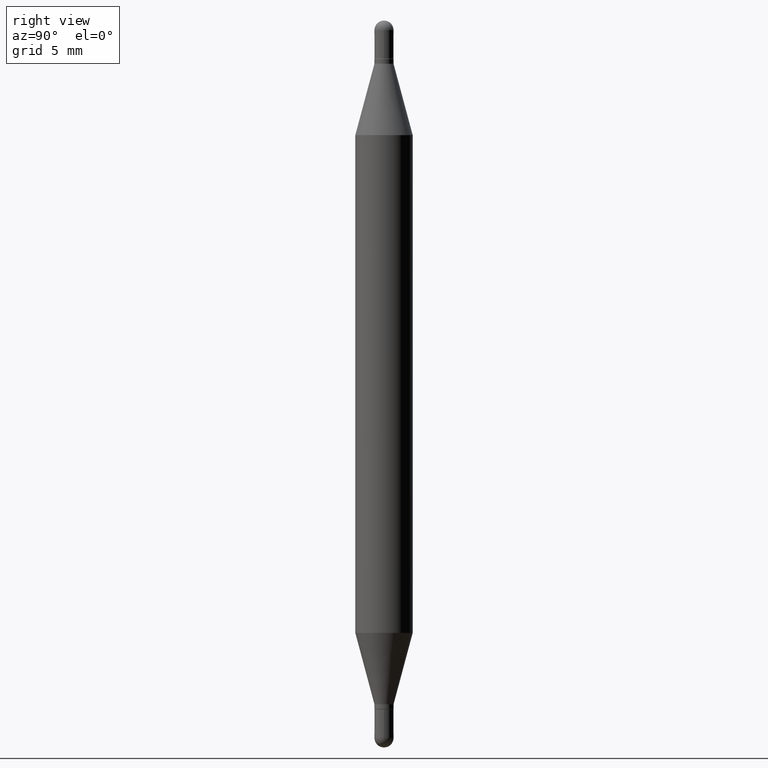
[diagram: clean part render]
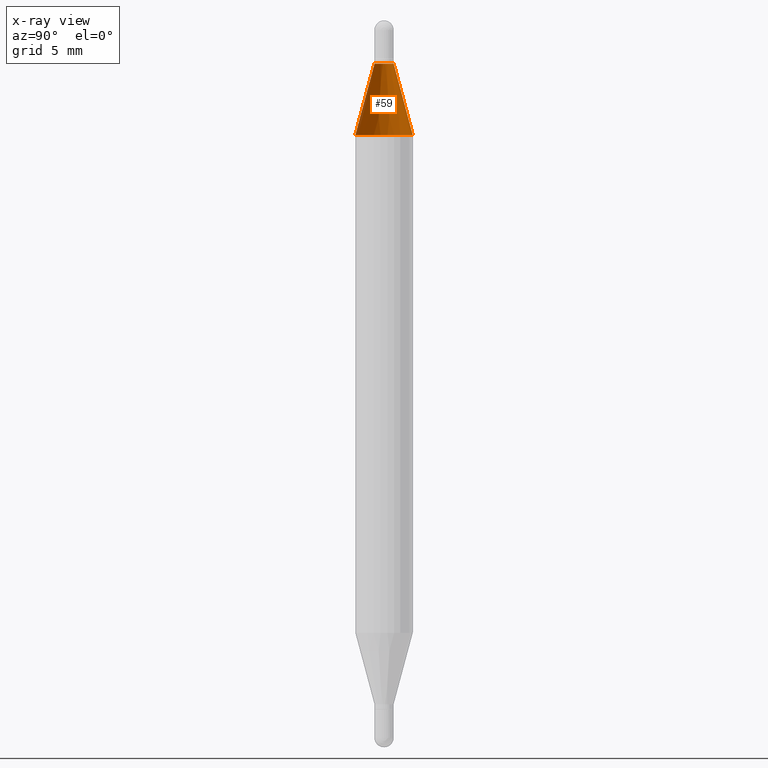
[diagram: x-ray — body ghosted, one internal face saturated and labeled with its STEP entity id]
A machine part, right view, then the same camera in x-ray: the body is ghosted and one INTERNAL B-rep face — a face not visible from any outside direction — is saturated and labeled: STEP entity #59.
In plain terms, the highlighted conical surface has half-angle 15 deg.
Its self-contained STEP definition (entity closure, byte-faithful):
#24 = DIRECTION ( 'NONE',  ( -2.440243022076049801E-29, -3.472130846700455674E-15, -1.000000000000000000 ) ) ;
#31 = ORIENTED_EDGE ( 'NONE', *, *, #828, .F. ) ;
#59 = ADVANCED_FACE ( 'NONE', ( #520 ), #677, .T. ) ;
#66 = LINE ( 'NONE', #147, #376 ) ;
#117 = CARTESIAN_POINT ( 'NONE',  ( -4.123439461173434150E-16, -0.05905000000000085181, -0.2358561992778356042 ) ) ;
#140 = DIRECTION ( 'NONE',  ( -6.982962677686265922E-15, -1.000000000000000000, 3.469747663417775819E-15 ) ) ;
#147 = CARTESIAN_POINT ( 'NONE',  ( -1.375643647503834691E-16, -0.01970000000000009591, -0.08899999999999999578 ) ) ;
#148 = EDGE_CURVE ( 'NONE', #1000, #1019, #484, .T. ) ;
#207 = CARTESIAN_POINT ( 'NONE',  ( -1.375643647503834691E-16, -0.01970000000000009591, -0.08899999999999999578 ) ) ;
#265 = VERTEX_POINT ( 'NONE', #884 ) ;
#339 = VECTOR ( 'NONE', #640, 39.37007874015748143 ) ;
#365 = DIRECTION ( 'NONE',  ( 2.440243022076049801E-29, 3.472130846700455674E-15, 1.000000000000000000 ) ) ;
#376 = VECTOR ( 'NONE', #669, 39.37007874015748143 ) ;
#396 = ORIENTED_EDGE ( 'NONE', *, *, #148, .T. ) ;
#478 = CARTESIAN_POINT ( 'NONE',  ( 1.351518105561318824E-16, 0.01969999999999943671, -0.08900000000000013456 ) ) ;
#484 = CIRCLE ( 'NONE', #1087, 0.05905000000000002608 ) ;
#499 = DIRECTION ( 'NONE',  ( -6.982962677686265922E-15, -1.000000000000000000, 3.466812174700882903E-15 ) ) ;
#504 = CARTESIAN_POINT ( 'NONE',  ( 3.433665956363208741E-29, -3.290929031521682305E-16, -0.08900000000000006517 ) ) ;
#520 = FACE_OUTER_BOUND ( 'NONE', #595, .T. ) ;
#571 = DIRECTION ( 'NONE',  ( 2.440243022076049801E-29, 3.472130846700455674E-15, 1.000000000000000000 ) ) ;
#592 = CARTESIAN_POINT ( 'NONE',  ( 4.051124067684397324E-16, 0.05904999999999918647, -0.2358561992778360206 ) ) ;
#595 = EDGE_LOOP ( 'NONE', ( #31, #1058, #396, #657 ) ) ;
#628 = LINE ( 'NONE', #478, #339 ) ;
#640 = DIRECTION ( 'NONE',  ( 1.775627540710965497E-15, 0.2588190451025182970, -0.9659258262890689783 ) ) ;
#657 = ORIENTED_EDGE ( 'NONE', *, *, #804, .F. ) ;
#667 = DIRECTION ( 'NONE',  ( -6.982962677686265922E-15, -1.000000000000000000, 3.466812174700882903E-15 ) ) ;
#669 = DIRECTION ( 'NONE',  ( -1.807323732225330534E-15, -0.2588190451025249583, -0.9659258262890670910 ) ) ;
#677 = CONICAL_SURFACE ( 'NONE', #972, 0.01969999999999976631, 0.2617993877991502960 ) ;
#719 = EDGE_CURVE ( 'NONE', #265, #1000, #628, .T. ) ;
#724 = CARTESIAN_POINT ( 'NONE',  ( 3.075301140826860747E-29, -8.389968426939312005E-16, -0.2358561992778358263 ) ) ;
#804 = EDGE_CURVE ( 'NONE', #1088, #1019, #66, .T. ) ;
#815 = AXIS2_PLACEMENT_3D ( 'NONE', #504, #571, #499 ) ;
#828 = EDGE_CURVE ( 'NONE', #265, #1088, #865, .T. ) ;
#845 = CARTESIAN_POINT ( 'NONE',  ( 3.433665956363208741E-29, -3.290929031521682305E-16, -0.08900000000000006517 ) ) ;
#865 = CIRCLE ( 'NONE', #815, 0.01969999999999976631 ) ;
#884 = CARTESIAN_POINT ( 'NONE',  ( 1.351518105561320303E-16, 0.01969999999999943671, -0.08900000000000013456 ) ) ;
#972 = AXIS2_PLACEMENT_3D ( 'NONE', #845, #24, #667 ) ;
#1000 = VERTEX_POINT ( 'NONE', #592 ) ;
#1019 = VERTEX_POINT ( 'NONE', #117 ) ;
#1058 = ORIENTED_EDGE ( 'NONE', *, *, #719, .T. ) ;
#1087 = AXIS2_PLACEMENT_3D ( 'NONE', #724, #365, #140 ) ;
#1088 = VERTEX_POINT ( 'NONE', #207 ) ;